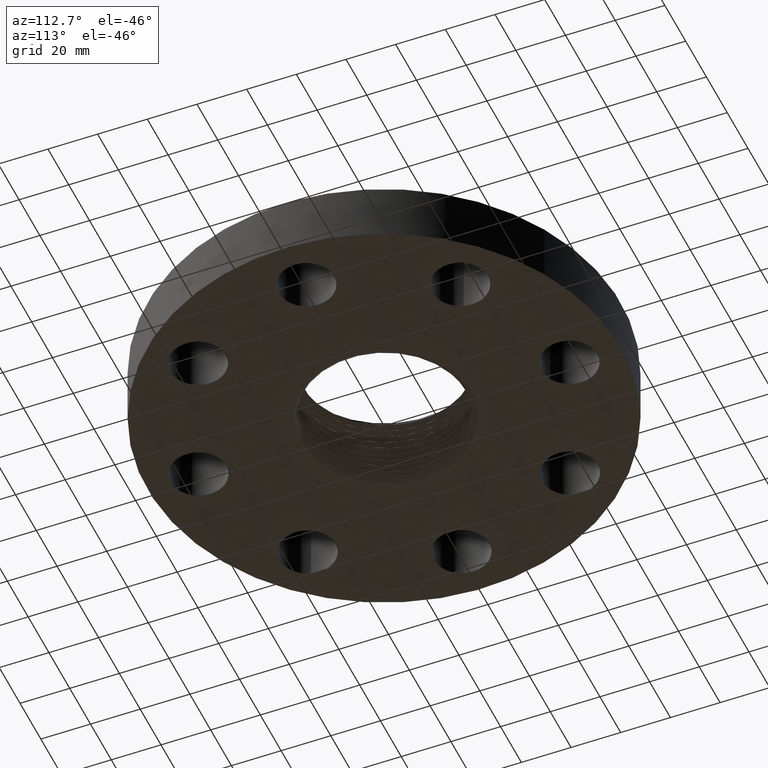
[diagram: clean part render]
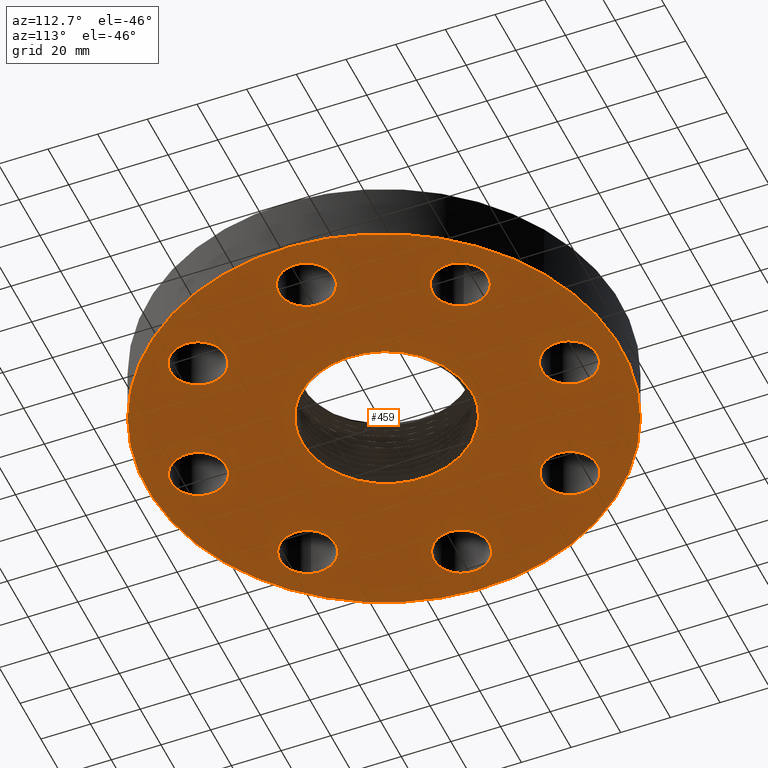
[diagram: same view with one face highlighted and labeled with its STEP entity id]
A machine part, auxiliary view. The second image highlights one B-rep face of the part: STEP entity #459.
In plain terms, the highlighted planar face has unit normal (0, 0, -1).
Its self-contained STEP definition (entity closure, byte-faithful):
#180=AXIS2_PLACEMENT_3D('Plane Axis2P3D',#177,#178,#179) ;
#184=AXIS2_PLACEMENT_3D('Circle Axis2P3D',#182,#183,$) ;
#193=AXIS2_PLACEMENT_3D('Circle Axis2P3D',#191,#192,$) ;
#202=AXIS2_PLACEMENT_3D('Circle Axis2P3D',#200,#201,$) ;
#211=AXIS2_PLACEMENT_3D('Circle Axis2P3D',#209,#210,$) ;
#220=AXIS2_PLACEMENT_3D('Circle Axis2P3D',#218,#219,$) ;
#229=AXIS2_PLACEMENT_3D('Circle Axis2P3D',#227,#228,$) ;
#238=AXIS2_PLACEMENT_3D('Circle Axis2P3D',#236,#237,$) ;
#247=AXIS2_PLACEMENT_3D('Circle Axis2P3D',#245,#246,$) ;
#256=AXIS2_PLACEMENT_3D('Circle Axis2P3D',#254,#255,$) ;
#265=AXIS2_PLACEMENT_3D('Circle Axis2P3D',#263,#264,$) ;
#274=AXIS2_PLACEMENT_3D('Circle Axis2P3D',#272,#273,$) ;
#283=AXIS2_PLACEMENT_3D('Circle Axis2P3D',#281,#282,$) ;
#292=AXIS2_PLACEMENT_3D('Circle Axis2P3D',#290,#291,$) ;
#301=AXIS2_PLACEMENT_3D('Circle Axis2P3D',#299,#300,$) ;
#310=AXIS2_PLACEMENT_3D('Circle Axis2P3D',#308,#309,$) ;
#319=AXIS2_PLACEMENT_3D('Circle Axis2P3D',#317,#318,$) ;
#328=AXIS2_PLACEMENT_3D('Circle Axis2P3D',#326,#327,$) ;
#337=AXIS2_PLACEMENT_3D('Circle Axis2P3D',#335,#336,$) ;
#447=AXIS2_PLACEMENT_3D('Circle Axis2P3D',#445,#446,$) ;
#177=CARTESIAN_POINT('Axis2P3D Location',(0.,0.,0.)) ;
#182=CARTESIAN_POINT('Axis2P3D Location',(0.,0.,0.)) ;
#186=CARTESIAN_POINT('Vertex',(1.79784576977,3.2909346071,4.19611851827E-016)) ;
#188=CARTESIAN_POINT('Vertex',(-1.79784576977,-3.2909346071,4.19611851827E-016)) ;
#191=CARTESIAN_POINT('Axis2P3D Location',(0.,0.,0.)) ;
#200=CARTESIAN_POINT('Axis2P3D Location',(2.94000000001,2.44773580232E-016,0.)) ;
#204=CARTESIAN_POINT('Vertex',(3.32613632725,-0.210947236987,0.)) ;
#206=CARTESIAN_POINT('Vertex',(2.55386367278,0.210947236987,0.)) ;
#209=CARTESIAN_POINT('Axis2P3D Location',(2.94000000001,6.99353086378E-017,0.)) ;
#218=CARTESIAN_POINT('Axis2P3D Location',(2.0788939367,-2.0788939367,0.)) ;
#222=CARTESIAN_POINT('Vertex',(1.95501654299,-1.6566920995,0.)) ;
#224=CARTESIAN_POINT('Vertex',(2.2027713304,-2.50109577389,0.)) ;
#227=CARTESIAN_POINT('Axis2P3D Location',(2.0788939367,-2.0788939367,0.)) ;
#236=CARTESIAN_POINT('Axis2P3D Location',(-3.1470888887E-016,-2.94000000001,0.)) ;
#240=CARTESIAN_POINT('Vertex',(0.210947236987,-2.55386367278,0.)) ;
#242=CARTESIAN_POINT('Vertex',(-0.210947236987,-3.32613632725,0.)) ;
#245=CARTESIAN_POINT('Axis2P3D Location',(-2.79741234551E-016,-2.94000000001,0.)) ;
#254=CARTESIAN_POINT('Axis2P3D Location',(-2.0788939367,-2.0788939367,0.)) ;
#258=CARTESIAN_POINT('Vertex',(-1.6566920995,-1.95501654299,0.)) ;
#260=CARTESIAN_POINT('Vertex',(-2.50109577389,-2.2027713304,0.)) ;
#263=CARTESIAN_POINT('Axis2P3D Location',(-2.0788939367,-2.0788939367,0.)) ;
#272=CARTESIAN_POINT('Axis2P3D Location',(-2.94000000001,-6.64385432059E-016,0.)) ;
#276=CARTESIAN_POINT('Vertex',(-2.55386367278,-0.210947236987,0.)) ;
#278=CARTESIAN_POINT('Vertex',(-3.32613632725,0.210947236987,0.)) ;
#281=CARTESIAN_POINT('Axis2P3D Location',(-2.94000000001,-2.44773580232E-016,0.)) ;
#290=CARTESIAN_POINT('Axis2P3D Location',(-2.0788939367,2.0788939367,0.)) ;
#294=CARTESIAN_POINT('Vertex',(-1.95501654299,1.6566920995,0.)) ;
#296=CARTESIAN_POINT('Vertex',(-2.2027713304,2.50109577389,0.)) ;
#299=CARTESIAN_POINT('Axis2P3D Location',(-2.0788939367,2.0788939367,0.)) ;
#308=CARTESIAN_POINT('Axis2P3D Location',(-5.59482469102E-016,2.94000000001,0.)) ;
#312=CARTESIAN_POINT('Vertex',(-0.210947236987,2.55386367278,0.)) ;
#314=CARTESIAN_POINT('Vertex',(0.210947236987,3.32613632725,0.)) ;
#317=CARTESIAN_POINT('Axis2P3D Location',(-6.64385432059E-016,2.94000000001,0.)) ;
#326=CARTESIAN_POINT('Axis2P3D Location',(2.0788939367,2.0788939367,0.)) ;
#330=CARTESIAN_POINT('Vertex',(1.6566920995,1.95501654299,0.)) ;
#332=CARTESIAN_POINT('Vertex',(2.50109577389,2.2027713304,0.)) ;
#335=CARTESIAN_POINT('Axis2P3D Location',(2.0788939367,2.0788939367,0.)) ;
#345=CARTESIAN_POINT('Control Point',(-2.86732418257E-005,-1.29434886242,0.)) ;
#346=CARTESIAN_POINT('Control Point',(-0.00885559056888,-1.29414172916,0.)) ;
#347=CARTESIAN_POINT('Control Point',(-0.0176798460384,-1.29385933065,0.)) ;
#348=CARTESIAN_POINT('Control Point',(-0.0265016030928,-1.29350165366,0.)) ;
#349=CARTESIAN_POINT('Control Point',(-0.0353179367266,-1.29306882881,0.)) ;
#350=CARTESIAN_POINT('Control Point',(-0.0441290033717,-1.29256088019,0.)) ;
#351=CARTESIAN_POINT('Vertex',(-2.86732418266E-005,-1.29434886242,0.)) ;
#353=CARTESIAN_POINT('Vertex',(-0.0441290039735,-1.29256087909,0.)) ;
#357=CARTESIAN_POINT('Control Point',(0.627796591562,-1.14922470978,0.)) ;
#358=CARTESIAN_POINT('Control Point',(0.523250489277,-1.20322978371,0.)) ;
#359=CARTESIAN_POINT('Control Point',(0.412772798891,-1.24541876828,0.)) ;
#360=CARTESIAN_POINT('Control Point',(0.298130796071,-1.27490096527,0.)) ;
#361=CARTESIAN_POINT('Control Point',(0.168466430347,-1.29298086103,0.)) ;
#362=CARTESIAN_POINT('Control Point',(0.038567217386,-1.29477480286,0.)) ;
#363=CARTESIAN_POINT('Control Point',(0.0256959089443,-1.2947926423,0.)) ;
#364=CARTESIAN_POINT('Control Point',(0.0128307931757,-1.29465062386,0.)) ;
#365=CARTESIAN_POINT('Control Point',(-2.86732418266E-005,-1.29434886242,0.)) ;
#366=CARTESIAN_POINT('Vertex',(0.627796591562,-1.14922470978,2.18547839493E-018)) ;
#370=CARTESIAN_POINT('Control Point',(2.49436846988E-006,1.38967999826,0.)) ;
#371=CARTESIAN_POINT('Control Point',(0.10698977784,1.38734366137,0.)) ;
#372=CARTESIAN_POINT('Control Point',(0.213645854047,1.37470894701,0.)) ;
#373=CARTESIAN_POINT('Control Point',(0.318633420801,1.35181786264,0.)) ;
#374=CARTESIAN_POINT('Control Point',(0.522656664242,1.28613034505,0.)) ;
#375=CARTESIAN_POINT('Control Point',(0.709897779794,1.18280488052,0.)) ;
#376=CARTESIAN_POINT('Control Point',(0.798126959827,1.12226299409,0.)) ;
#377=CARTESIAN_POINT('Control Point',(0.961538886756,0.985010838699,0.)) ;
#378=CARTESIAN_POINT('Control Point',(1.09523244644,0.819209804805,0.)) ;
#379=CARTESIAN_POINT('Control Point',(1.15372231489,0.730136965257,0.)) ;
#380=CARTESIAN_POINT('Control Point',(1.24543958,0.555391489285,0.)) ;
#381=CARTESIAN_POINT('Control Point',(1.30409745518,0.367572521981,0.)) ;
#382=CARTESIAN_POINT('Control Point',(1.32380887588,0.27891778401,0.)) ;
#383=CARTESIAN_POINT('Control Point',(1.3501972045,0.0843315478052,0.)) ;
#384=CARTESIAN_POINT('Control Point',(1.34106801292,-0.111633024827,0.)) ;
#385=CARTESIAN_POINT('Control Point',(1.3258016657,-0.216211850068,0.)) ;
#386=CARTESIAN_POINT('Control Point',(1.27500415303,-0.42078542753,0.)) ;
#387=CARTESIAN_POINT('Control Point',(1.18554293672,-0.611115634006,0.)) ;
#388=CARTESIAN_POINT('Control Point',(1.13160331636,-0.701470873887,0.)) ;
#389=CARTESIAN_POINT('Control Point',(1.01267388423,-0.862175022668,0.)) ;
#390=CARTESIAN_POINT('Control Point',(0.866258152694,-0.997497421775,0.)) ;
#391=CARTESIAN_POINT('Control Point',(0.791172629764,-1.05531873711,0.)) ;
#392=CARTESIAN_POINT('Control Point',(0.711380183448,-1.10604817827,0.)) ;
#393=CARTESIAN_POINT('Control Point',(0.627796591562,-1.14922470978,0.)) ;
#394=CARTESIAN_POINT('Vertex',(2.49436846988E-006,1.38967999826,0.)) ;
#398=CARTESIAN_POINT('Control Point',(-0.109166685403,1.38777505661,0.)) ;
#399=CARTESIAN_POINT('Control Point',(-0.087353138325,1.38901336083,0.)) ;
#400=CARTESIAN_POINT('Control Point',(-0.065519665018,1.38982335623,0.)) ;
#401=CARTESIAN_POINT('Control Point',(-0.0436629573761,1.39020464412,0.)) ;
#402=CARTESIAN_POINT('Control Point',(-0.0218233268451,1.39015662009,0.)) ;
#403=CARTESIAN_POINT('Control Point',(2.49436846985E-006,1.38967999826,0.)) ;
#404=CARTESIAN_POINT('Vertex',(-0.109166685403,1.38777505661,-8.74191357973E-018)) ;
#408=CARTESIAN_POINT('Control Point',(-0.109166685403,1.38777505661,0.)) ;
#409=CARTESIAN_POINT('Control Point',(-0.225633117562,1.37578473312,0.)) ;
#410=CARTESIAN_POINT('Control Point',(-0.340692989419,1.35156137922,0.)) ;
#411=CARTESIAN_POINT('Control Point',(-0.452633851447,1.31529927158,0.)) ;
#412=CARTESIAN_POINT('Control Point',(-0.559770933258,1.26756371884,0.)) ;
#413=CARTESIAN_POINT('Control Point',(-0.660614281906,1.20924253798,0.)) ;
#414=CARTESIAN_POINT('Vertex',(-0.660614281906,1.20924253798,2.18547839493E-018)) ;
#418=CARTESIAN_POINT('Control Point',(-0.660614281906,1.20924253798,0.)) ;
#419=CARTESIAN_POINT('Control Point',(-0.752860351465,1.15589345947,0.)) ;
#420=CARTESIAN_POINT('Control Point',(-0.839839989003,1.09368671213,0.)) ;
#421=CARTESIAN_POINT('Control Point',(-0.920397780032,1.02330973193,0.)) ;
#422=CARTESIAN_POINT('Control Point',(-1.06668335413,0.86800657139,0.)) ;
#423=CARTESIAN_POINT('Control Point',(-1.1800482696,0.687919694685,0.)) ;
#424=CARTESIAN_POINT('Control Point',(-1.22771299341,0.592719488583,0.)) ;
#425=CARTESIAN_POINT('Control Point',(-1.3037933163,0.394505269558,0.)) ;
#426=CARTESIAN_POINT('Control Point',(-1.34002411175,0.185805073999,0.)) ;
#427=CARTESIAN_POINT('Control Point',(-1.3478356164,0.0801232676607,0.)) ;
#428=CARTESIAN_POINT('Control Point',(-1.3430357185,-0.116056504606,0.)) ;
#429=CARTESIAN_POINT('Control Point',(-1.30300625354,-0.307498299449,0.)) ;
#430=CARTESIAN_POINT('Control Point',(-1.27714430382,-0.393983396968,0.)) ;
#431=CARTESIAN_POINT('Control Point',(-1.20564864445,-0.57558085289,0.)) ;
#432=CARTESIAN_POINT('Control Point',(-1.10252272442,-0.740968082388,0.)) ;
#433=CARTESIAN_POINT('Control Point',(-1.03843101857,-0.824130744492,0.)) ;
#434=CARTESIAN_POINT('Control Point',(-0.894839191373,-0.976520195045,0.)) ;
#435=CARTESIAN_POINT('Control Point',(-0.724614484005,-1.09747557732,0.)) ;
#436=CARTESIAN_POINT('Control Point',(-0.633852675582,-1.14923345702,0.)) ;
#437=CARTESIAN_POINT('Control Point',(-0.484555263005,-1.21566242624,0.)) ;
#438=CARTESIAN_POINT('Control Point',(-0.327585918535,-1.25792331411,0.)) ;
#439=CARTESIAN_POINT('Control Point',(-0.269915235964,-1.26999078844,0.)) ;
#440=CARTESIAN_POINT('Control Point',(-0.211724323111,-1.27875660438,0.)) ;
#441=CARTESIAN_POINT('Control Point',(-0.153266065211,-1.28420034921,0.)) ;
#442=CARTESIAN_POINT('Vertex',(-0.153266070844,-1.28420033743,0.)) ;
#445=CARTESIAN_POINT('Axis2P3D Location',(1.39870617276E-016,-6.99353086378E-017,0.)) ;
#178=DIRECTION('Axis2P3D Direction',(0.,0.,-0.0393700787402)) ;
#179=DIRECTION('Axis2P3D XDirection',(0.0393700787402,0.,0.)) ;
#183=DIRECTION('Axis2P3D Direction',(0.,0.,-0.0393700787402)) ;
#192=DIRECTION('Axis2P3D Direction',(0.,0.,-0.0393700787402)) ;
#201=DIRECTION('Axis2P3D Direction',(0.,0.,-0.0393700787402)) ;
#210=DIRECTION('Axis2P3D Direction',(0.,0.,-0.0393700787402)) ;
#219=DIRECTION('Axis2P3D Direction',(0.,0.,-0.0393700787402)) ;
#228=DIRECTION('Axis2P3D Direction',(0.,0.,-0.0393700787402)) ;
#237=DIRECTION('Axis2P3D Direction',(0.,0.,-0.0393700787402)) ;
#246=DIRECTION('Axis2P3D Direction',(0.,0.,-0.0393700787402)) ;
#255=DIRECTION('Axis2P3D Direction',(0.,0.,-0.0393700787402)) ;
#264=DIRECTION('Axis2P3D Direction',(0.,0.,-0.0393700787402)) ;
#273=DIRECTION('Axis2P3D Direction',(0.,0.,-0.0393700787402)) ;
#282=DIRECTION('Axis2P3D Direction',(0.,0.,-0.0393700787402)) ;
#291=DIRECTION('Axis2P3D Direction',(0.,0.,-0.0393700787402)) ;
#300=DIRECTION('Axis2P3D Direction',(0.,0.,-0.0393700787402)) ;
#309=DIRECTION('Axis2P3D Direction',(0.,0.,-0.0393700787402)) ;
#318=DIRECTION('Axis2P3D Direction',(0.,0.,-0.0393700787402)) ;
#327=DIRECTION('Axis2P3D Direction',(0.,0.,-0.0393700787402)) ;
#336=DIRECTION('Axis2P3D Direction',(0.,0.,-0.0393700787402)) ;
#446=DIRECTION('Axis2P3D Direction',(0.,0.,-0.0393700787402)) ;
#197=ORIENTED_EDGE('',*,*,#190,.T.) ;
#198=ORIENTED_EDGE('',*,*,#195,.T.) ;
#215=ORIENTED_EDGE('',*,*,#208,.F.) ;
#216=ORIENTED_EDGE('',*,*,#213,.F.) ;
#233=ORIENTED_EDGE('',*,*,#226,.F.) ;
#234=ORIENTED_EDGE('',*,*,#231,.F.) ;
#251=ORIENTED_EDGE('',*,*,#244,.F.) ;
#252=ORIENTED_EDGE('',*,*,#249,.F.) ;
#269=ORIENTED_EDGE('',*,*,#262,.F.) ;
#270=ORIENTED_EDGE('',*,*,#267,.F.) ;
#287=ORIENTED_EDGE('',*,*,#280,.F.) ;
#288=ORIENTED_EDGE('',*,*,#285,.F.) ;
#305=ORIENTED_EDGE('',*,*,#298,.F.) ;
#306=ORIENTED_EDGE('',*,*,#303,.F.) ;
#323=ORIENTED_EDGE('',*,*,#316,.F.) ;
#324=ORIENTED_EDGE('',*,*,#321,.F.) ;
#341=ORIENTED_EDGE('',*,*,#334,.F.) ;
#342=ORIENTED_EDGE('',*,*,#339,.F.) ;
#451=ORIENTED_EDGE('',*,*,#355,.F.) ;
#452=ORIENTED_EDGE('',*,*,#368,.F.) ;
#453=ORIENTED_EDGE('',*,*,#396,.F.) ;
#454=ORIENTED_EDGE('',*,*,#406,.F.) ;
#455=ORIENTED_EDGE('',*,*,#416,.T.) ;
#456=ORIENTED_EDGE('',*,*,#444,.T.) ;
#457=ORIENTED_EDGE('',*,*,#449,.F.) ;
#217=FACE_BOUND('',#214,.T.) ;
#235=FACE_BOUND('',#232,.T.) ;
#253=FACE_BOUND('',#250,.T.) ;
#271=FACE_BOUND('',#268,.T.) ;
#289=FACE_BOUND('',#286,.T.) ;
#307=FACE_BOUND('',#304,.T.) ;
#325=FACE_BOUND('',#322,.T.) ;
#343=FACE_BOUND('',#340,.T.) ;
#458=FACE_BOUND('',#450,.T.) ;
#459=ADVANCED_FACE('PartBody',(#199,#217,#235,#253,#271,#289,#307,#325,#343,#458),#181,.T.) ;
#344=B_SPLINE_CURVE_WITH_KNOTS('',5,(#345,#346,#347,#348,#349,#350),.UNSPECIFIED.,.F.,.U.,(6,6),(0.,1.6147907005),.UNSPECIFIED.) ;
#356=B_SPLINE_CURVE_WITH_KNOTS('',5,(#357,#358,#359,#360,#361,#362,#363,#364,#365),.UNSPECIFIED.,.F.,.U.,(6,3,6),(0.,21.3945727244,23.7470754177),.UNSPECIFIED.) ;
#369=B_SPLINE_CURVE_WITH_KNOTS('',5,(#370,#371,#372,#373,#374,#375,#376,#377,#378,#379,#380,#381,#382,#383,#384,#385,#386,#387,#388,#389,#390,#391,#392,#393),.UNSPECIFIED.,.F.,.U.,(6,3,3,3,3,3,3,6),(0.,18.9017937524,37.8082262315,56.7097134672,72.9035142053,91.7984021527,110.69726165,127.802014463),.UNSPECIFIED.) ;
#397=B_SPLINE_CURVE_WITH_KNOTS('',5,(#398,#399,#400,#401,#402,#403),.UNSPECIFIED.,.F.,.U.,(6,6),(0.,3.85603931313),.UNSPECIFIED.) ;
#407=B_SPLINE_CURVE_WITH_KNOTS('',5,(#408,#409,#410,#411,#412,#413),.UNSPECIFIED.,.F.,.U.,(6,6),(0.,20.6638856038),.UNSPECIFIED.) ;
#417=B_SPLINE_CURVE_WITH_KNOTS('',5,(#418,#419,#420,#421,#422,#423,#424,#425,#426,#427,#428,#429,#430,#431,#432,#433,#434,#435,#436,#437,#438,#439,#440,#441),.UNSPECIFIED.,.F.,.U.,(6,3,3,3,3,3,3,6),(0.,18.9022107648,37.8130161169,56.7229939323,72.9275043536,91.8394703735,110.760266549,121.519176114),.UNSPECIFIED.) ;
#185=CIRCLE('generated circle',#184,3.75000000002) ;
#194=CIRCLE('generated circle',#193,3.75000000002) ;
#203=CIRCLE('generated circle',#202,0.440000000002) ;
#212=CIRCLE('generated circle',#211,0.440000000002) ;
#221=CIRCLE('generated circle',#220,0.440000000002) ;
#230=CIRCLE('generated circle',#229,0.440000000002) ;
#239=CIRCLE('generated circle',#238,0.440000000002) ;
#248=CIRCLE('generated circle',#247,0.440000000002) ;
#257=CIRCLE('generated circle',#256,0.440000000002) ;
#266=CIRCLE('generated circle',#265,0.440000000002) ;
#275=CIRCLE('generated circle',#274,0.440000000002) ;
#284=CIRCLE('generated circle',#283,0.440000000002) ;
#293=CIRCLE('generated circle',#292,0.440000000002) ;
#302=CIRCLE('generated circle',#301,0.440000000002) ;
#311=CIRCLE('generated circle',#310,0.440000000002) ;
#320=CIRCLE('generated circle',#319,0.440000000002) ;
#329=CIRCLE('generated circle',#328,0.440000000002) ;
#338=CIRCLE('generated circle',#337,0.440000000002) ;
#448=CIRCLE('generated circle',#447,1.29331395845) ;
#190=EDGE_CURVE('',#187,#189,#185,.T.) ;
#195=EDGE_CURVE('',#189,#187,#194,.T.) ;
#208=EDGE_CURVE('',#205,#207,#203,.T.) ;
#213=EDGE_CURVE('',#207,#205,#212,.T.) ;
#226=EDGE_CURVE('',#223,#225,#221,.T.) ;
#231=EDGE_CURVE('',#225,#223,#230,.T.) ;
#244=EDGE_CURVE('',#241,#243,#239,.T.) ;
#249=EDGE_CURVE('',#243,#241,#248,.T.) ;
#262=EDGE_CURVE('',#259,#261,#257,.T.) ;
#267=EDGE_CURVE('',#261,#259,#266,.T.) ;
#280=EDGE_CURVE('',#277,#279,#275,.T.) ;
#285=EDGE_CURVE('',#279,#277,#284,.T.) ;
#298=EDGE_CURVE('',#295,#297,#293,.T.) ;
#303=EDGE_CURVE('',#297,#295,#302,.T.) ;
#316=EDGE_CURVE('',#313,#315,#311,.T.) ;
#321=EDGE_CURVE('',#315,#313,#320,.T.) ;
#334=EDGE_CURVE('',#331,#333,#329,.T.) ;
#339=EDGE_CURVE('',#333,#331,#338,.T.) ;
#355=EDGE_CURVE('',#352,#354,#344,.T.) ;
#368=EDGE_CURVE('',#367,#352,#356,.T.) ;
#396=EDGE_CURVE('',#395,#367,#369,.T.) ;
#406=EDGE_CURVE('',#405,#395,#397,.T.) ;
#416=EDGE_CURVE('',#405,#415,#407,.T.) ;
#444=EDGE_CURVE('',#415,#443,#417,.T.) ;
#449=EDGE_CURVE('',#354,#443,#448,.T.) ;
#196=EDGE_LOOP('',(#197,#198)) ;
#214=EDGE_LOOP('',(#215,#216)) ;
#232=EDGE_LOOP('',(#233,#234)) ;
#250=EDGE_LOOP('',(#251,#252)) ;
#268=EDGE_LOOP('',(#269,#270)) ;
#286=EDGE_LOOP('',(#287,#288)) ;
#304=EDGE_LOOP('',(#305,#306)) ;
#322=EDGE_LOOP('',(#323,#324)) ;
#340=EDGE_LOOP('',(#341,#342)) ;
#450=EDGE_LOOP('',(#451,#452,#453,#454,#455,#456,#457)) ;
#199=FACE_OUTER_BOUND('',#196,.T.) ;
#181=PLANE('',#180) ;
#187=VERTEX_POINT('',#186) ;
#189=VERTEX_POINT('',#188) ;
#205=VERTEX_POINT('',#204) ;
#207=VERTEX_POINT('',#206) ;
#223=VERTEX_POINT('',#222) ;
#225=VERTEX_POINT('',#224) ;
#241=VERTEX_POINT('',#240) ;
#243=VERTEX_POINT('',#242) ;
#259=VERTEX_POINT('',#258) ;
#261=VERTEX_POINT('',#260) ;
#277=VERTEX_POINT('',#276) ;
#279=VERTEX_POINT('',#278) ;
#295=VERTEX_POINT('',#294) ;
#297=VERTEX_POINT('',#296) ;
#313=VERTEX_POINT('',#312) ;
#315=VERTEX_POINT('',#314) ;
#331=VERTEX_POINT('',#330) ;
#333=VERTEX_POINT('',#332) ;
#352=VERTEX_POINT('',#351) ;
#354=VERTEX_POINT('',#353) ;
#367=VERTEX_POINT('',#366) ;
#395=VERTEX_POINT('',#394) ;
#405=VERTEX_POINT('',#404) ;
#415=VERTEX_POINT('',#414) ;
#443=VERTEX_POINT('',#442) ;